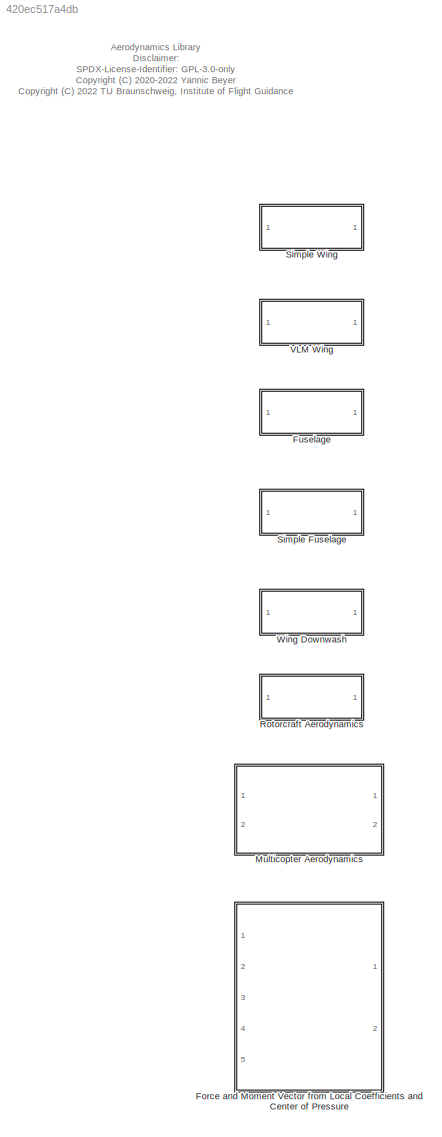
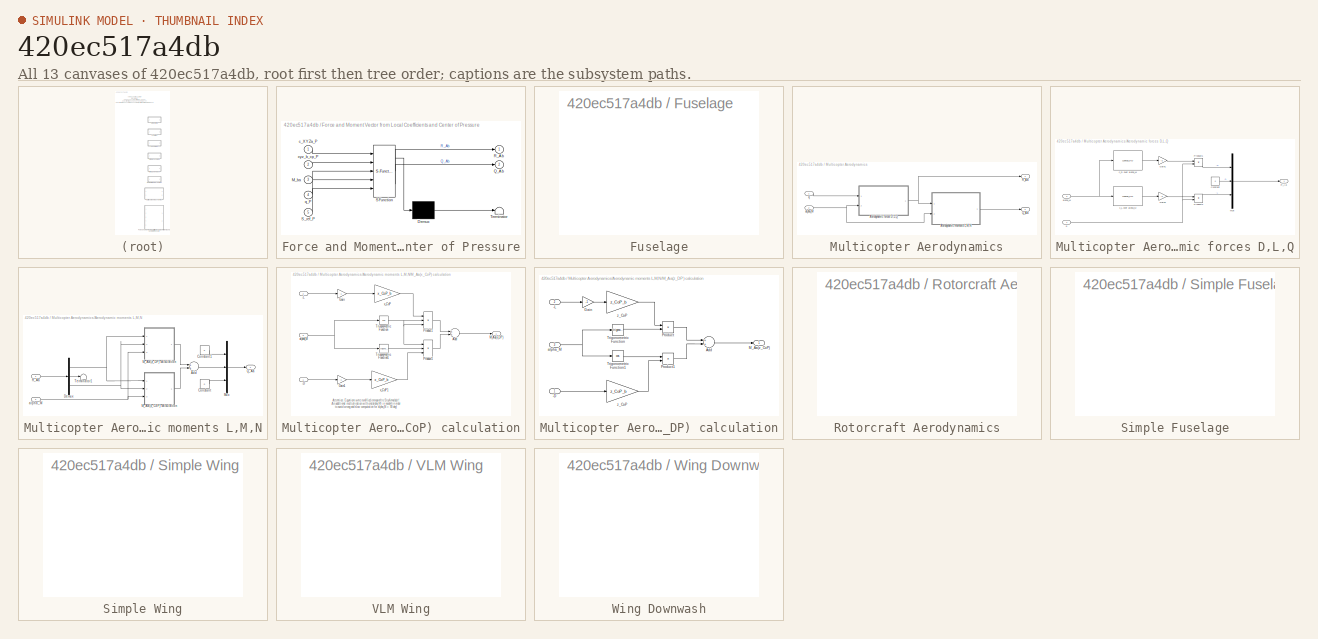
[diagram: thumbnail index - all 13 canvases of the model, root first then tree order]
MODEL slx_420ec517a4db
KIND library
CONFIG AbsTol = auto
CONFIG EnableMultiTasking = off
CONFIG FixedStep = auto
CONFIG MaxStep = auto
CONFIG MinStep = auto
CONFIG RelTol = 1e-3
CONFIG SampleTimeConstraint = Unconstrained
CONFIG Solver = VariableStepAuto
CONFIG SolverName = VariableStepAuto
CONFIG StartTime = 0.0
CONFIG StopTime = 10.0
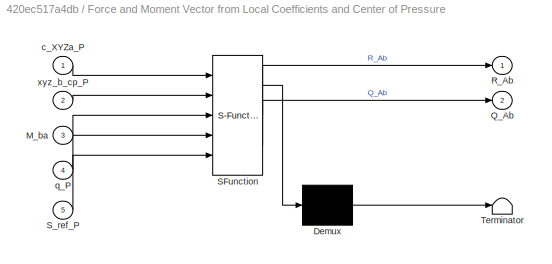
BLOCK [SubSystem] Force and Moment Vector from Local Coefficients and Center of Pressure
  ErrorFcn = Stateflow.Translate.translate
  PermitHierarchicalResolution = ExplicitOnly
  Ports = [5, 2]
  RequestExecContextInheritance = off
  SFBlockType = MATLAB Function
  TreatAsAtomicUnit = on
BLOCK [Demux] Force and Moment Vector from Local Coefficients and Center of Pressure/ Demux 
  Outputs = 1
  Ports = [1, 1]
BLOCK [S-Function] Force and Moment Vector from Local Coefficients and Center of Pressure/ SFunction 
  EnableBusSupport = off
  FunctionName = sf_sfun
  PortCounts = [5 3]
  Ports = [5, 3]
  SFcnIsStateOwnerBlock = off
  SFunctionDeploymentMode = off
  Tag = Stateflow S-Function aerodynamics_lib 2
BLOCK [Terminator] Force and Moment Vector from Local Coefficients and Center of Pressure/ Terminator 
BLOCK [Inport] Force and Moment Vector from Local Coefficients and Center of Pressure/M_ba
  IconDisplay = Port number
  Port = 3
BLOCK [Outport] Force and Moment Vector from Local Coefficients and Center of Pressure/Q_Ab
  IconDisplay = Port number
  Port = 2
BLOCK [Outport] Force and Moment Vector from Local Coefficients and Center of Pressure/R_Ab
  IconDisplay = Port number
BLOCK [Inport] Force and Moment Vector from Local Coefficients and Center of Pressure/S_ref_P
  IconDisplay = Port number
  Port = 5
BLOCK [Inport] Force and Moment Vector from Local Coefficients and Center of Pressure/c_XYZa_P
  IconDisplay = Port number
BLOCK [Inport] Force and Moment Vector from Local Coefficients and Center of Pressure/q_P
  IconDisplay = Port number
  Port = 4
BLOCK [Inport] Force and Moment Vector from Local Coefficients and Center of Pressure/xyz_b_cp_P
  IconDisplay = Port number
  Port = 2
BLOCK [SubSystem] Fuselage
  OpenFcn = fuselage_lib
  Ports = []
  RequestExecContextInheritance = off
BLOCK [SubSystem] Multicopter Aerodynamics
  Ports = [2, 2]
  RequestExecContextInheritance = off
BLOCK [SubSystem] Multicopter Aerodynamics/Aerodynamic forces D,L,Q
  Ports = [2, 1]
  RequestExecContextInheritance = off
BLOCK [Constant] Multicopter Aerodynamics/Aerodynamic forces D,L,Q/Constant
  Value = 0
BLOCK [Gain] Multicopter Aerodynamics/Aerodynamic forces D,L,Q/Gain1
  Gain = -S
  OutDataTypeStr = Inherit: Inherit via internal rule
  ParamDataTypeStr = Inherit: Inherit via internal rule
  SaturateOnIntegerOverflow = off
BLOCK [Gain] Multicopter Aerodynamics/Aerodynamic forces D,L,Q/Gain2
  Gain = -S
  OutDataTypeStr = Inherit: Inherit via internal rule
  ParamDataTypeStr = Inherit: Inherit via internal rule
  SaturateOnIntegerOverflow = off
BLOCK [Mux] Multicopter Aerodynamics/Aerodynamic forces D,L,Q/Mux
  DisplayOption = bar
  Inputs = 3
  Ports = [3, 1]
BLOCK [Product] Multicopter Aerodynamics/Aerodynamic forces D,L,Q/Product1
  InputSameDT = off
  OutDataTypeStr = Inherit: Inherit via internal rule
  Ports = [2, 1]
  RndMeth = Floor
  SaturateOnIntegerOverflow = off
BLOCK [Product] Multicopter Aerodynamics/Aerodynamic forces D,L,Q/Product2
  InputSameDT = off
  OutDataTypeStr = Inherit: Inherit via internal rule
  Ports = [2, 1]
  RndMeth = Floor
  SaturateOnIntegerOverflow = off
BLOCK [Outport] Multicopter Aerodynamics/Aerodynamic forces D,L,Q/R_Aa
  IconDisplay = Port number
BLOCK [Inport] Multicopter Aerodynamics/Aerodynamic forces D,L,Q/alpha_M
  IconDisplay = Port number
  Port = 2
BLOCK [Lookup_n-D] Multicopter Aerodynamics/Aerodynamic forces D,L,Q/c_D over alpha_M
  BreakpointsForDimension1 = [-pi/2:pi/50:pi/2]
  InternalRulePriority = Speed
  NumberOfTableDimensions = 1
  Ports = [1, 1]
  RndMeth = Simplest
  Table = (C_D_max-C_D_min)/2*-cos(-pi:pi/25:pi)+(C_D_max+C_D_min)/2
BLOCK [Lookup_n-D] Multicopter Aerodynamics/Aerodynamic forces D,L,Q/c_L over alpha_M
  BreakpointsForDimension1 = [-pi/2:pi/50:pi/2]
  InternalRulePriority = Speed
  NumberOfTableDimensions = 1
  Ports = [1, 1]
  RndMeth = Simplest
  Table = C_L_max*sin(-pi:pi/25:pi)
BLOCK [Inport] Multicopter Aerodynamics/Aerodynamic forces D,L,Q/q
  IconDisplay = Port number
BLOCK [SubSystem] Multicopter Aerodynamics/Aerodynamic moments L,M,N
  Ports = [2, 1]
  RequestExecContextInheritance = off
BLOCK [Sum] Multicopter Aerodynamics/Aerodynamic moments L,M,N/Add
  InputSameDT = off
  OutDataTypeStr = Inherit: Inherit via internal rule
  Ports = [2, 1]
  SaturateOnIntegerOverflow = off
BLOCK [Constant] Multicopter Aerodynamics/Aerodynamic moments L,M,N/Constant
  Value = 0
BLOCK [Constant] Multicopter Aerodynamics/Aerodynamic moments L,M,N/Constant1
  Value = 0
BLOCK [Demux] Multicopter Aerodynamics/Aerodynamic moments L,M,N/Demux
  DisplayOption = bar
  Outputs = 3
  Ports = [1, 3]
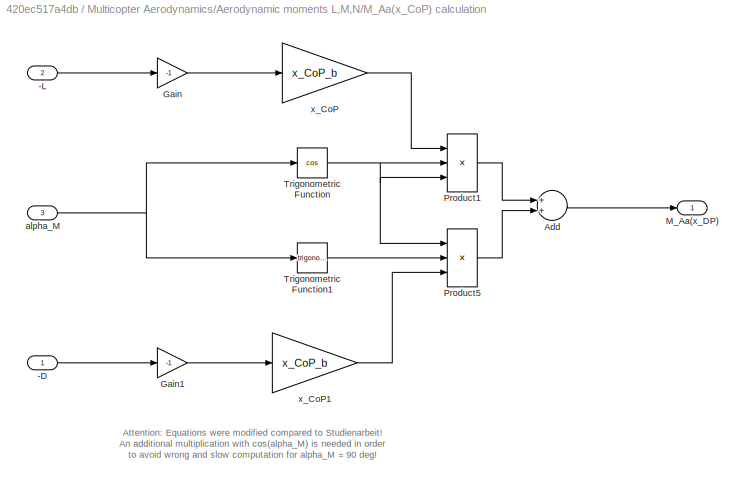
BLOCK [SubSystem] Multicopter Aerodynamics/Aerodynamic moments L,M,N/M_Aa(x_CoP) calculation
  Ports = [3, 1]
  RequestExecContextInheritance = off
BLOCK [Inport] Multicopter Aerodynamics/Aerodynamic moments L,M,N/M_Aa(x_CoP) calculation/-D
  IconDisplay = Port number
BLOCK [Inport] Multicopter Aerodynamics/Aerodynamic moments L,M,N/M_Aa(x_CoP) calculation/-L
  IconDisplay = Port number
  Port = 2
BLOCK [Sum] Multicopter Aerodynamics/Aerodynamic moments L,M,N/M_Aa(x_CoP) calculation/Add
  InputSameDT = off
  OutDataTypeStr = Inherit: Inherit via internal rule
  Ports = [2, 1]
  SaturateOnIntegerOverflow = off
BLOCK [Gain] Multicopter Aerodynamics/Aerodynamic moments L,M,N/M_Aa(x_CoP) calculation/Gain
  Gain = -1
  OutDataTypeStr = Inherit: Inherit via internal rule
  ParamDataTypeStr = Inherit: Inherit via internal rule
  SaturateOnIntegerOverflow = off
BLOCK [Gain] Multicopter Aerodynamics/Aerodynamic moments L,M,N/M_Aa(x_CoP) calculation/Gain1
  Gain = -1
  OutDataTypeStr = Inherit: Inherit via internal rule
  ParamDataTypeStr = Inherit: Inherit via internal rule
  SaturateOnIntegerOverflow = off
BLOCK [Outport] Multicopter Aerodynamics/Aerodynamic moments L,M,N/M_Aa(x_CoP) calculation/M_Aa(x_DP)
  IconDisplay = Port number
BLOCK [Product] Multicopter Aerodynamics/Aerodynamic moments L,M,N/M_Aa(x_CoP) calculation/Product1
  InputSameDT = off
  Inputs = 3
  OutDataTypeStr = Inherit: Inherit via internal rule
  Ports = [3, 1]
  RndMeth = Floor
  SaturateOnIntegerOverflow = off
BLOCK [Product] Multicopter Aerodynamics/Aerodynamic moments L,M,N/M_Aa(x_CoP) calculation/Product5
  InputSameDT = off
  Inputs = 3
  OutDataTypeStr = Inherit: Inherit via internal rule
  Ports = [3, 1]
  RndMeth = Floor
  SaturateOnIntegerOverflow = off
BLOCK [Trigonometry] Multicopter Aerodynamics/Aerodynamic moments L,M,N/M_Aa(x_CoP) calculation/Trigonometric Function
  Operator = cos
  Ports = [1, 1]
BLOCK [Trigonometry] Multicopter Aerodynamics/Aerodynamic moments L,M,N/M_Aa(x_CoP) calculation/Trigonometric Function1
  Ports = [1, 1]
BLOCK [Inport] Multicopter Aerodynamics/Aerodynamic moments L,M,N/M_Aa(x_CoP) calculation/alpha_M
  IconDisplay = Port number
  Port = 3
BLOCK [Gain] Multicopter Aerodynamics/Aerodynamic moments L,M,N/M_Aa(x_CoP) calculation/x_CoP
  Gain = x_CoP_b
  OutDataTypeStr = Inherit: Inherit via internal rule
  ParamDataTypeStr = Inherit: Inherit via internal rule
  SaturateOnIntegerOverflow = off
BLOCK [Gain] Multicopter Aerodynamics/Aerodynamic moments L,M,N/M_Aa(x_CoP) calculation/x_CoP1
  Gain = x_CoP_b
  OutDataTypeStr = Inherit: Inherit via internal rule
  ParamDataTypeStr = Inherit: Inherit via internal rule
  SaturateOnIntegerOverflow = off
BLOCK [SubSystem] Multicopter Aerodynamics/Aerodynamic moments L,M,N/M_Aa(z_DP) calculation
  Ports = [3, 1]
  RequestExecContextInheritance = off
BLOCK [Inport] Multicopter Aerodynamics/Aerodynamic moments L,M,N/M_Aa(z_DP) calculation/-D
  IconDisplay = Port number
BLOCK [Inport] Multicopter Aerodynamics/Aerodynamic moments L,M,N/M_Aa(z_DP) calculation/-L
  IconDisplay = Port number
  Port = 2
BLOCK [Sum] Multicopter Aerodynamics/Aerodynamic moments L,M,N/M_Aa(z_DP) calculation/Add
  InputSameDT = off
  OutDataTypeStr = Inherit: Inherit via internal rule
  Ports = [2, 1]
  SaturateOnIntegerOverflow = off
BLOCK [Gain] Multicopter Aerodynamics/Aerodynamic moments L,M,N/M_Aa(z_DP) calculation/Gain 
  Gain = -1
  OutDataTypeStr = Inherit: Inherit via internal rule
  ParamDataTypeStr = Inherit: Inherit via internal rule
  SaturateOnIntegerOverflow = off
BLOCK [Outport] Multicopter Aerodynamics/Aerodynamic moments L,M,N/M_Aa(z_DP) calculation/M_Aa(z_CoP)
  IconDisplay = Port number
BLOCK [Product] Multicopter Aerodynamics/Aerodynamic moments L,M,N/M_Aa(z_DP) calculation/Product
  InputSameDT = off
  OutDataTypeStr = Inherit: Inherit via internal rule
  Ports = [2, 1]
  RndMeth = Floor
  SaturateOnIntegerOverflow = off
BLOCK [Product] Multicopter Aerodynamics/Aerodynamic moments L,M,N/M_Aa(z_DP) calculation/Product1
  InputSameDT = off
  OutDataTypeStr = Inherit: Inherit via internal rule
  Ports = [2, 1]
  RndMeth = Floor
  SaturateOnIntegerOverflow = off
BLOCK [Trigonometry] Multicopter Aerodynamics/Aerodynamic moments L,M,N/M_Aa(z_DP) calculation/Trigonometric Function
  Ports = [1, 1]
BLOCK [Trigonometry] Multicopter Aerodynamics/Aerodynamic moments L,M,N/M_Aa(z_DP) calculation/Trigonometric Function1
  Operator = cos
  Ports = [1, 1]
BLOCK [Inport] Multicopter Aerodynamics/Aerodynamic moments L,M,N/M_Aa(z_DP) calculation/alpha_M
  IconDisplay = Port number
  Port = 3
BLOCK [Gain] Multicopter Aerodynamics/Aerodynamic moments L,M,N/M_Aa(z_DP) calculation/z_CoP
  Gain = z_CoP_b
  OutDataTypeStr = Inherit: Inherit via internal rule
  ParamDataTypeStr = Inherit: Inherit via internal rule
  SaturateOnIntegerOverflow = off
BLOCK [Gain] Multicopter Aerodynamics/Aerodynamic moments L,M,N/M_Aa(z_DP) calculation/z_CoP 
  Gain = z_CoP_b
  OutDataTypeStr = Inherit: Inherit via internal rule
  ParamDataTypeStr = Inherit: Inherit via internal rule
  SaturateOnIntegerOverflow = off
BLOCK [Mux] Multicopter Aerodynamics/Aerodynamic moments L,M,N/Mux
  DisplayOption = bar
  Inputs = 3
  Ports = [3, 1]
BLOCK [Outport] Multicopter Aerodynamics/Aerodynamic moments L,M,N/Q_Aa
  IconDisplay = Port number
BLOCK [Inport] Multicopter Aerodynamics/Aerodynamic moments L,M,N/R_Aa
  IconDisplay = Port number
BLOCK [Terminator] Multicopter Aerodynamics/Aerodynamic moments L,M,N/Terminator1
BLOCK [Inport] Multicopter Aerodynamics/Aerodynamic moments L,M,N/alpha_M
  IconDisplay = Port number
  Port = 2
BLOCK [Outport] Multicopter Aerodynamics/Q_Aa
  IconDisplay = Port number
  Port = 2
BLOCK [Outport] Multicopter Aerodynamics/R_Aa
  IconDisplay = Port number
BLOCK [Inport] Multicopter Aerodynamics/alpha_M
  IconDisplay = Port number
  Port = 2
BLOCK [Inport] Multicopter Aerodynamics/q
  IconDisplay = Port number
BLOCK [SubSystem] Rotorcraft Aerodynamics
  OpenFcn = rotorcraft_lib
  Ports = []
  RequestExecContextInheritance = off
BLOCK [SubSystem] Simple Fuselage
  OpenFcn = simpleFuselage_lib
  Ports = []
  RequestExecContextInheritance = off
BLOCK [SubSystem] Simple Wing
  OpenFcn = simple_wing_lib
  Ports = []
  RequestExecContextInheritance = off
BLOCK [SubSystem] VLM Wing
  OpenFcn = vlm_wing_lib
  Ports = []
  RequestExecContextInheritance = off
BLOCK [SubSystem] Wing Downwash
  OpenFcn = wing_downwash_lib
  Ports = []
  RequestExecContextInheritance = off
ANNOTATION (root): Aerodynamics Library Disclaimer: SPDX-License-Identifier: GPL-3.0-only <copyright redacted>
ANNOTATION Multicopter Aerodynamics/Aerodynamic moments L,M,N/M_Aa(x_CoP) calculation: Attention: Equations were modified compared to Studienarbeit! An additional multiplication with cos(alpha_M) is needed in order to avoid wrong and slow computation for alpha_M = 90 deg!
LINE Multicopter Aerodynamics/Aerodynamic forces D,L,Q/Constant:1 -> Multicopter Aerodynamics/Aerodynamic forces D,L,Q/Mux:2
LINE Multicopter Aerodynamics/Aerodynamic forces D,L,Q/Gain1:1 -> Multicopter Aerodynamics/Aerodynamic forces D,L,Q/Product1:1
LINE Multicopter Aerodynamics/Aerodynamic forces D,L,Q/Gain2:1 -> Multicopter Aerodynamics/Aerodynamic forces D,L,Q/Product2:1
LINE Multicopter Aerodynamics/Aerodynamic forces D,L,Q/Mux:1 -> Multicopter Aerodynamics/Aerodynamic forces D,L,Q/R_Aa:1
LINE Multicopter Aerodynamics/Aerodynamic forces D,L,Q/Product1:1 -> Multicopter Aerodynamics/Aerodynamic forces D,L,Q/Mux:1
LINE Multicopter Aerodynamics/Aerodynamic forces D,L,Q/Product2:1 -> Multicopter Aerodynamics/Aerodynamic forces D,L,Q/Mux:3
NET Multicopter Aerodynamics/Aerodynamic forces D,L,Q/alpha_M:1 -> Multicopter Aerodynamics/Aerodynamic forces D,L,Q/c_D over alpha_M:1, Multicopter Aerodynamics/Aerodynamic forces D,L,Q/c_L over alpha_M:1
LINE Multicopter Aerodynamics/Aerodynamic forces D,L,Q/c_D over alpha_M:1 -> Multicopter Aerodynamics/Aerodynamic forces D,L,Q/Gain1:1
LINE Multicopter Aerodynamics/Aerodynamic forces D,L,Q/c_L over alpha_M:1 -> Multicopter Aerodynamics/Aerodynamic forces D,L,Q/Gain2:1
NET Multicopter Aerodynamics/Aerodynamic forces D,L,Q/q:1 -> Multicopter Aerodynamics/Aerodynamic forces D,L,Q/Product1:2, Multicopter Aerodynamics/Aerodynamic forces D,L,Q/Product2:2
NET Multicopter Aerodynamics/Aerodynamic forces D,L,Q:1 -> Multicopter Aerodynamics/Aerodynamic moments L,M,N:1, Multicopter Aerodynamics/R_Aa:1
LINE Multicopter Aerodynamics/Aerodynamic moments L,M,N/Add:1 -> Multicopter Aerodynamics/Aerodynamic moments L,M,N/Mux:2
LINE Multicopter Aerodynamics/Aerodynamic moments L,M,N/Constant1:1 -> Multicopter Aerodynamics/Aerodynamic moments L,M,N/Mux:1
LINE Multicopter Aerodynamics/Aerodynamic moments L,M,N/Constant:1 -> Multicopter Aerodynamics/Aerodynamic moments L,M,N/Mux:3
NET Multicopter Aerodynamics/Aerodynamic moments L,M,N/Demux:1 -> Multicopter Aerodynamics/Aerodynamic moments L,M,N/M_Aa(x_CoP) calculation:1, Multicopter Aerodynamics/Aerodynamic moments L,M,N/M_Aa(z_DP) calculation:1
LINE Multicopter Aerodynamics/Aerodynamic moments L,M,N/Demux:2 -> Multicopter Aerodynamics/Aerodynamic moments L,M,N/Terminator1:1
NET Multicopter Aerodynamics/Aerodynamic moments L,M,N/Demux:3 -> Multicopter Aerodynamics/Aerodynamic moments L,M,N/M_Aa(x_CoP) calculation:2, Multicopter Aerodynamics/Aerodynamic moments L,M,N/M_Aa(z_DP) calculation:2
LINE Multicopter Aerodynamics/Aerodynamic moments L,M,N/M_Aa(x_CoP) calculation/-D:1 -> Multicopter Aerodynamics/Aerodynamic moments L,M,N/M_Aa(x_CoP) calculation/Gain1:1
LINE Multicopter Aerodynamics/Aerodynamic moments L,M,N/M_Aa(x_CoP) calculation/-L:1 -> Multicopter Aerodynamics/Aerodynamic moments L,M,N/M_Aa(x_CoP) calculation/Gain:1
LINE Multicopter Aerodynamics/Aerodynamic moments L,M,N/M_Aa(x_CoP) calculation/Add:1 -> Multicopter Aerodynamics/Aerodynamic moments L,M,N/M_Aa(x_CoP) calculation/M_Aa(x_DP):1
LINE Multicopter Aerodynamics/Aerodynamic moments L,M,N/M_Aa(x_CoP) calculation/Gain1:1 -> Multicopter Aerodynamics/Aerodynamic moments L,M,N/M_Aa(x_CoP) calculation/x_CoP1:1
LINE Multicopter Aerodynamics/Aerodynamic moments L,M,N/M_Aa(x_CoP) calculation/Gain:1 -> Multicopter Aerodynamics/Aerodynamic moments L,M,N/M_Aa(x_CoP) calculation/x_CoP:1
LINE Multicopter Aerodynamics/Aerodynamic moments L,M,N/M_Aa(x_CoP) calculation/Product1:1 -> Multicopter Aerodynamics/Aerodynamic moments L,M,N/M_Aa(x_CoP) calculation/Add:1
LINE Multicopter Aerodynamics/Aerodynamic moments L,M,N/M_Aa(x_CoP) calculation/Product5:1 -> Multicopter Aerodynamics/Aerodynamic moments L,M,N/M_Aa(x_CoP) calculation/Add:2
LINE Multicopter Aerodynamics/Aerodynamic moments L,M,N/M_Aa(x_CoP) calculation/Trigonometric Function1:1 -> Multicopter Aerodynamics/Aerodynamic moments L,M,N/M_Aa(x_CoP) calculation/Product5:2
NET Multicopter Aerodynamics/Aerodynamic moments L,M,N/M_Aa(x_CoP) calculation/Trigonometric Function:1 -> Multicopter Aerodynamics/Aerodynamic moments L,M,N/M_Aa(x_CoP) calculation/Product1:2, Multicopter Aerodynamics/Aerodynamic moments L,M,N/M_Aa(x_CoP) calculation/Product1:3, Multicopter Aerodynamics/Aerodynamic moments L,M,N/M_Aa(x_CoP) calculation/Product5:1
NET Multicopter Aerodynamics/Aerodynamic moments L,M,N/M_Aa(x_CoP) calculation/alpha_M:1 -> Multicopter Aerodynamics/Aerodynamic moments L,M,N/M_Aa(x_CoP) calculation/Trigonometric Function1:1, Multicopter Aerodynamics/Aerodynamic moments L,M,N/M_Aa(x_CoP) calculation/Trigonometric Function:1
LINE Multicopter Aerodynamics/Aerodynamic moments L,M,N/M_Aa(x_CoP) calculation/x_CoP1:1 -> Multicopter Aerodynamics/Aerodynamic moments L,M,N/M_Aa(x_CoP) calculation/Product5:3
LINE Multicopter Aerodynamics/Aerodynamic moments L,M,N/M_Aa(x_CoP) calculation/x_CoP:1 -> Multicopter Aerodynamics/Aerodynamic moments L,M,N/M_Aa(x_CoP) calculation/Product1:1
LINE Multicopter Aerodynamics/Aerodynamic moments L,M,N/M_Aa(x_CoP) calculation:1 -> Multicopter Aerodynamics/Aerodynamic moments L,M,N/Add:2
LINE Multicopter Aerodynamics/Aerodynamic moments L,M,N/M_Aa(z_DP) calculation/-D:1 -> Multicopter Aerodynamics/Aerodynamic moments L,M,N/M_Aa(z_DP) calculation/z_CoP :1
LINE Multicopter Aerodynamics/Aerodynamic moments L,M,N/M_Aa(z_DP) calculation/-L:1 -> Multicopter Aerodynamics/Aerodynamic moments L,M,N/M_Aa(z_DP) calculation/Gain :1
LINE Multicopter Aerodynamics/Aerodynamic moments L,M,N/M_Aa(z_DP) calculation/Add:1 -> Multicopter Aerodynamics/Aerodynamic moments L,M,N/M_Aa(z_DP) calculation/M_Aa(z_CoP):1
LINE Multicopter Aerodynamics/Aerodynamic moments L,M,N/M_Aa(z_DP) calculation/Gain :1 -> Multicopter Aerodynamics/Aerodynamic moments L,M,N/M_Aa(z_DP) calculation/z_CoP:1
LINE Multicopter Aerodynamics/Aerodynamic moments L,M,N/M_Aa(z_DP) calculation/Product1:1 -> Multicopter Aerodynamics/Aerodynamic moments L,M,N/M_Aa(z_DP) calculation/Add:2
LINE Multicopter Aerodynamics/Aerodynamic moments L,M,N/M_Aa(z_DP) calculation/Product:1 -> Multicopter Aerodynamics/Aerodynamic moments L,M,N/M_Aa(z_DP) calculation/Add:1
LINE Multicopter Aerodynamics/Aerodynamic moments L,M,N/M_Aa(z_DP) calculation/Trigonometric Function1:1 -> Multicopter Aerodynamics/Aerodynamic moments L,M,N/M_Aa(z_DP) calculation/Product1:1
LINE Multicopter Aerodynamics/Aerodynamic moments L,M,N/M_Aa(z_DP) calculation/Trigonometric Function:1 -> Multicopter Aerodynamics/Aerodynamic moments L,M,N/M_Aa(z_DP) calculation/Product:2
NET Multicopter Aerodynamics/Aerodynamic moments L,M,N/M_Aa(z_DP) calculation/alpha_M:1 -> Multicopter Aerodynamics/Aerodynamic moments L,M,N/M_Aa(z_DP) calculation/Trigonometric Function1:1, Multicopter Aerodynamics/Aerodynamic moments L,M,N/M_Aa(z_DP) calculation/Trigonometric Function:1
LINE Multicopter Aerodynamics/Aerodynamic moments L,M,N/M_Aa(z_DP) calculation/z_CoP :1 -> Multicopter Aerodynamics/Aerodynamic moments L,M,N/M_Aa(z_DP) calculation/Product1:2
LINE Multicopter Aerodynamics/Aerodynamic moments L,M,N/M_Aa(z_DP) calculation/z_CoP:1 -> Multicopter Aerodynamics/Aerodynamic moments L,M,N/M_Aa(z_DP) calculation/Product:1
LINE Multicopter Aerodynamics/Aerodynamic moments L,M,N/M_Aa(z_DP) calculation:1 -> Multicopter Aerodynamics/Aerodynamic moments L,M,N/Add:1
LINE Multicopter Aerodynamics/Aerodynamic moments L,M,N/Mux:1 -> Multicopter Aerodynamics/Aerodynamic moments L,M,N/Q_Aa:1
LINE Multicopter Aerodynamics/Aerodynamic moments L,M,N/R_Aa:1 -> Multicopter Aerodynamics/Aerodynamic moments L,M,N/Demux:1
NET Multicopter Aerodynamics/Aerodynamic moments L,M,N/alpha_M:1 -> Multicopter Aerodynamics/Aerodynamic moments L,M,N/M_Aa(x_CoP) calculation:3, Multicopter Aerodynamics/Aerodynamic moments L,M,N/M_Aa(z_DP) calculation:3
LINE Multicopter Aerodynamics/Aerodynamic moments L,M,N:1 -> Multicopter Aerodynamics/Q_Aa:1
NET Multicopter Aerodynamics/alpha_M:1 -> Multicopter Aerodynamics/Aerodynamic forces D,L,Q:2, Multicopter Aerodynamics/Aerodynamic moments L,M,N:2
LINE Multicopter Aerodynamics/q:1 -> Multicopter Aerodynamics/Aerodynamic forces D,L,Q:1
note: NET lines group one-source signal fan-out (src -> all destinations, sorted); 1:1 wires keep LINE
CHART Force and Moment Vector from
Local Coefficients and Center of
Pressure states=1 transitions=1
  STATE_LABEL 'eML_blk_kernel()'
  STATE_LABEL "SCRIPT:\nfunction [ R_Ab, Q_Ab ]  = fcn( c_XYZa_P, xyz_b_cp_P, M_ba, q_P, S_ref_P )\n%#codegen\n\nq_P = repmat( q_P, 3, 1 );\nS_ref_P = repmat( S_ref_P, 3, 1 );\nR_Aa_P = c_XYZa_P.*q_P.*S_ref_P;\n\nR_Ab_P = zeros(3,length(q_P(1,:)));\nfor i = 1:length(q_P(1,:))\n    R_Ab_P(:,i) = M_ba(:,:,i) * R_Aa_P(:,i);\nend\n\n% cross product\nt1 = [2,3,1]';\nt2 = [3,1,2]';\n%C = A(:,t1).*B(:,t2)-A(:,t2).*B(:,t1);\nQ_Ab_P = xy...<+190ch>"
